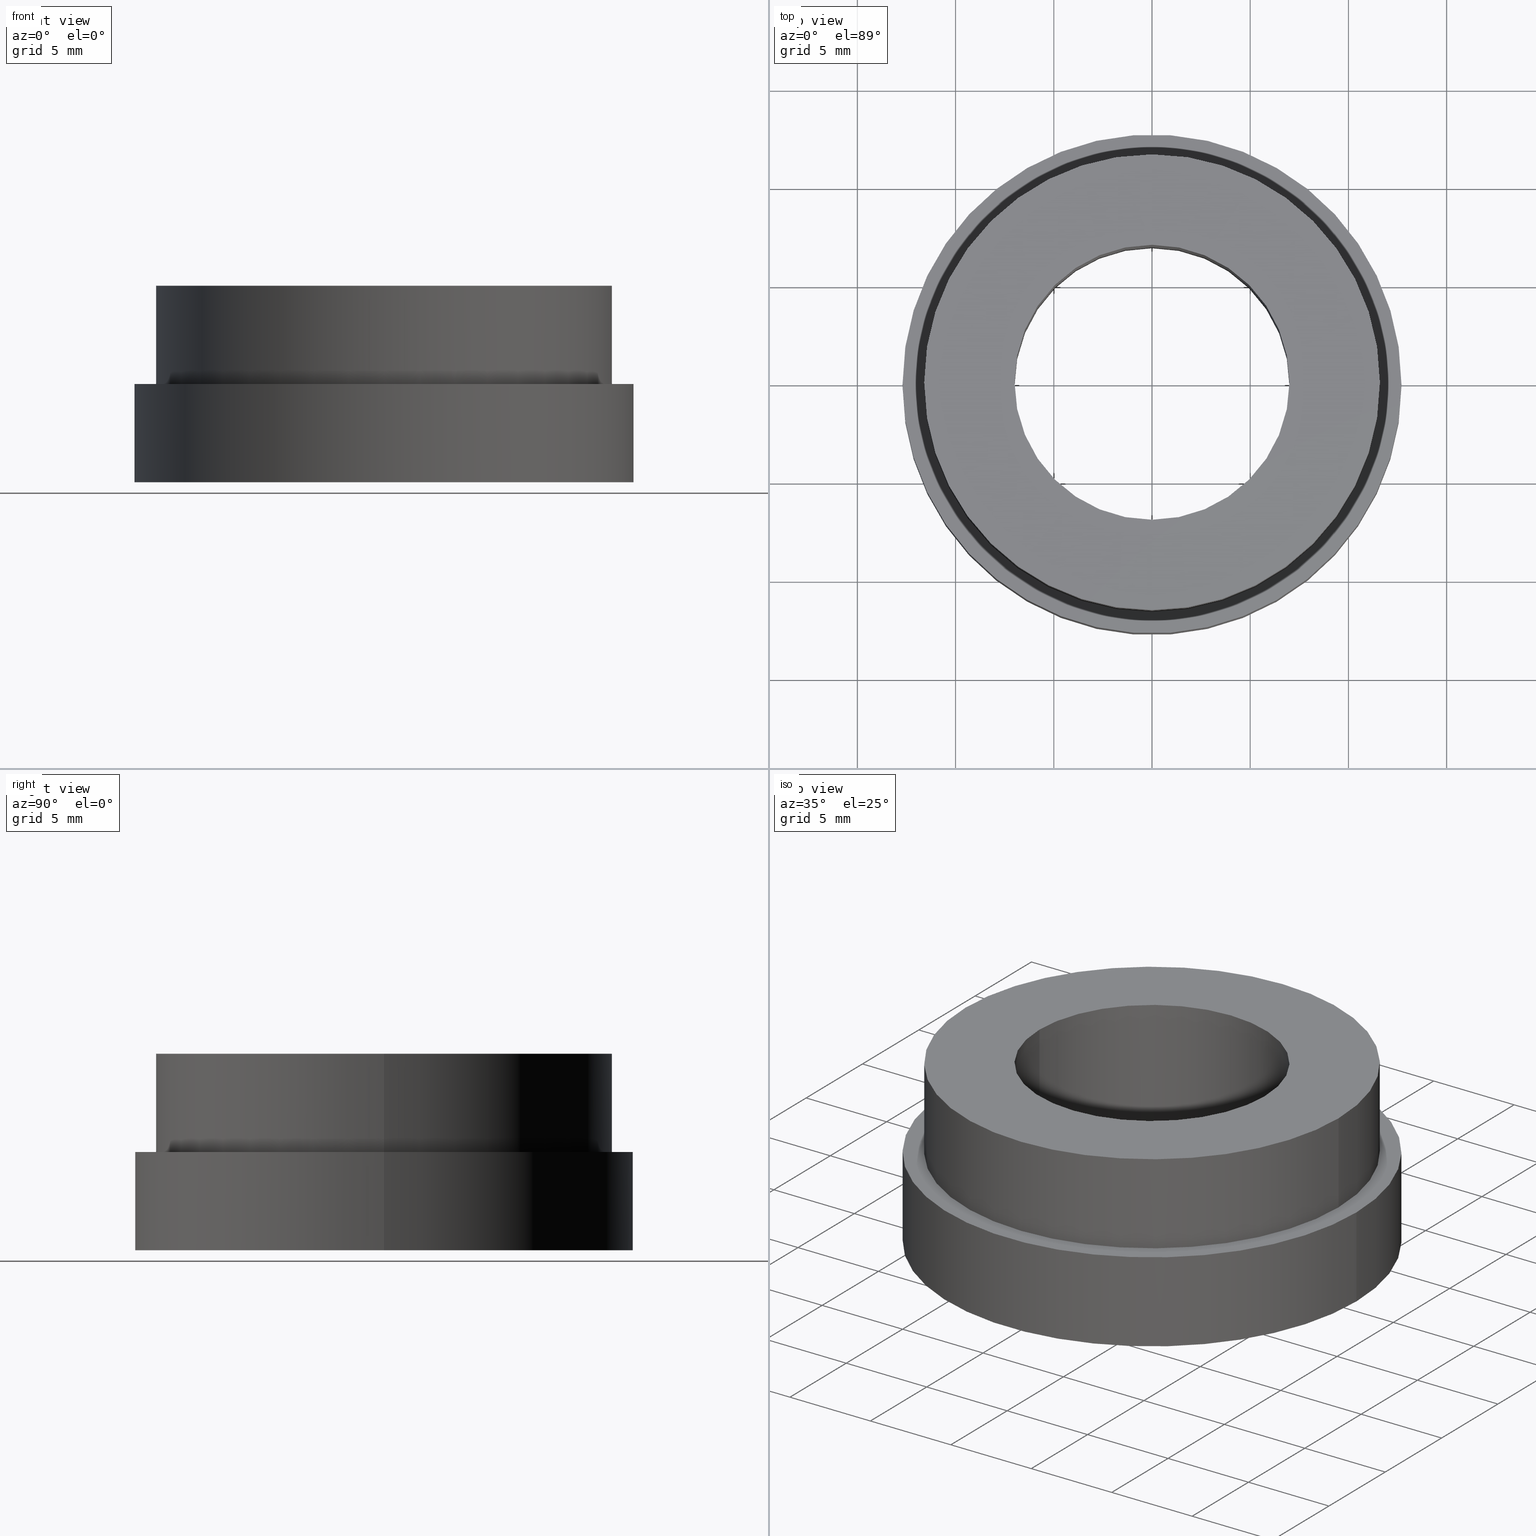
[diagram: canonical four-view strip — front | top / right | iso, engineering-drawing reading convention]
A machine part, canonical four-view strip (front | top / right | iso — engineering-drawing reading convention). The complete STEP part file that produces these views, byte-faithful:
ISO-10303-21;
HEADER;
FILE_DESCRIPTION (( 'STEP AP214' ),
    '1' );
FILE_NAME ('504086.STEP',
    '2019-09-17T01:17:08',
    ( 'user' ),
    ( '΢���й�' ),
    'SwSTEP 2.0',
    'SolidWorks 2016',
    '' );
FILE_SCHEMA (( 'AUTOMOTIVE_DESIGN' ));
ENDSEC;

DATA;
#1 = UNCERTAINTY_MEASURE_WITH_UNIT (LENGTH_MEASURE( 1.000000000000000100E-005 ), #219, 'distance_accuracy_value', 'NONE');
#2 = MECHANICAL_DESIGN_GEOMETRIC_PRESENTATION_REPRESENTATION (  '', ( #247 ), #92 ) ;
#3 = FILL_AREA_STYLE ('',( #276 ) ) ;
#4 = EDGE_CURVE ( 'NONE', #30, #248, #162, .T. ) ;
#5 =( GEOMETRIC_REPRESENTATION_CONTEXT ( 3 ) GLOBAL_UNCERTAINTY_ASSIGNED_CONTEXT ( ( #292 ) ) GLOBAL_UNIT_ASSIGNED_CONTEXT ( ( #165, #319, #135 ) ) REPRESENTATION_CONTEXT ( 'NONE', 'WORKASPACE' ) );
#6 = ADVANCED_FACE ( 'NONE', ( #79 ), #149, .T. ) ;
#7 = SURFACE_STYLE_FILL_AREA ( #242 ) ;
#8 = VERTEX_POINT ( 'NONE', #343 ) ;
#9 = ORIENTED_EDGE ( 'NONE', *, *, #202, .F. ) ;
#10 = DIRECTION ( 'NONE',  ( -0.0000000000000000000, -0.0000000000000000000, -1.000000000000000000 ) ) ;
#11 = FACE_OUTER_BOUND ( 'NONE', #83, .T. ) ;
#12 = ORIENTED_EDGE ( 'NONE', *, *, #294, .F. ) ;
#13 = CARTESIAN_POINT ( 'NONE',  ( 0.0000000000000000000, 0.0000000000000000000, 0.0000000000000000000 ) ) ;
#14 = FILL_AREA_STYLE ('',( #337 ) ) ;
#15 = DIRECTION ( 'NONE',  ( -0.0000000000000000000, -0.0000000000000000000, -1.000000000000000000 ) ) ;
#16 = PRODUCT_DEFINITION_SHAPE ( 'NONE', 'NONE',  #178 ) ;
#17 = EDGE_CURVE ( 'NONE', #237, #307, #220, .T. ) ;
#18 =( NAMED_UNIT ( * ) PLANE_ANGLE_UNIT ( ) SI_UNIT ( $, .RADIAN. ) );
#19 = DIRECTION ( 'NONE',  ( -1.000000000000000000, 0.0000000000000000000, 0.0000000000000000000 ) ) ;
#20 = DIRECTION ( 'NONE',  ( -1.000000000000000000, 0.0000000000000000000, 0.0000000000000000000 ) ) ;
#21 = PRESENTATION_STYLE_ASSIGNMENT (( #213 ) ) ;
#22 = FACE_OUTER_BOUND ( 'NONE', #106, .T. ) ;
#23 = ORIENTED_EDGE ( 'NONE', *, *, #294, .T. ) ;
#24 =( LENGTH_UNIT ( ) NAMED_UNIT ( * ) SI_UNIT ( .MILLI., .METRE. ) );
#25 = EDGE_CURVE ( 'NONE', #312, #139, #39, .T. ) ;
#26 = DIRECTION ( 'NONE',  ( -0.0000000000000000000, -0.0000000000000000000, -1.000000000000000000 ) ) ;
#27 = CARTESIAN_POINT ( 'NONE',  ( 0.0000000000000000000, 0.0000000000000000000, -19.14057971014493000 ) ) ;
#28 = AXIS2_PLACEMENT_3D ( 'NONE', #27, #167, #320 ) ;
#29 = DIRECTION ( 'NONE',  ( -0.0000000000000000000, -0.0000000000000000000, -1.000000000000000000 ) ) ;
#30 = VERTEX_POINT ( 'NONE', #259 ) ;
#31 =( NAMED_UNIT ( * ) PLANE_ANGLE_UNIT ( ) SI_UNIT ( $, .RADIAN. ) );
#32 = CYLINDRICAL_SURFACE ( 'NONE', #215, 11.60000000000000100 ) ;
#33 =( LENGTH_UNIT ( ) NAMED_UNIT ( * ) SI_UNIT ( .MILLI., .METRE. ) );
#34 = MANIFOLD_SOLID_BREP ( '��ת1', #156 ) ;
#35 = CARTESIAN_POINT ( 'NONE',  ( -7.000000000000001800, 0.0000000000000000000, 0.0000000000000000000 ) ) ;
#36 = ORIENTED_EDGE ( 'NONE', *, *, #186, .T. ) ;
#37 = AXIS2_PLACEMENT_3D ( 'NONE', #342, #181, #99 ) ;
#38 = AXIS2_PLACEMENT_3D ( 'NONE', #315, #159, #20 ) ;
#39 = CIRCLE ( 'NONE', #54, 11.60000000000000100 ) ;
#40 = ORIENTED_EDGE ( 'NONE', *, *, #347, .F. ) ;
#41 = DIRECTION ( 'NONE',  ( -0.0000000000000000000, -0.0000000000000000000, -1.000000000000000000 ) ) ;
#42 = ORIENTED_EDGE ( 'NONE', *, *, #152, .F. ) ;
#43 = STYLED_ITEM ( 'NONE', ( #21 ), #229 ) ;
#44 = DIRECTION ( 'NONE',  ( -1.000000000000000000, 0.0000000000000000000, 0.0000000000000000000 ) ) ;
#45 = SURFACE_STYLE_FILL_AREA ( #14 ) ;
#46 = ORIENTED_EDGE ( 'NONE', *, *, #78, .T. ) ;
#47 = LINE ( 'NONE', #84, #170 ) ;
#48 = SURFACE_SIDE_STYLE ('',( #7 ) ) ;
#49 = AXIS2_PLACEMENT_3D ( 'NONE', #273, #308, #278 ) ;
#50 = FACE_OUTER_BOUND ( 'NONE', #344, .T. ) ;
#51 = CARTESIAN_POINT ( 'NONE',  ( 7.000000000000002700, 8.572527594031475200E-016, -19.14057971014493000 ) ) ;
#52 = EDGE_LOOP ( 'NONE', ( #231, #244, #129, #180 ) ) ;
#53 = DIRECTION ( 'NONE',  ( 1.000000000000000000, 0.0000000000000000000, -0.0000000000000000000 ) ) ;
#54 = AXIS2_PLACEMENT_3D ( 'NONE', #161, #130, #288 ) ;
#55 = SURFACE_STYLE_USAGE ( .BOTH. , #245 ) ;
#56 = EDGE_CURVE ( 'NONE', #197, #176, #125, .T. ) ;
#57 = SURFACE_SIDE_STYLE ('',( #283 ) ) ;
#58 = ORIENTED_EDGE ( 'NONE', *, *, #78, .F. ) ;
#59 = CARTESIAN_POINT ( 'NONE',  ( 0.0000000000000000000, 0.0000000000000000000, -19.14057971014493000 ) ) ;
#60 = VECTOR ( 'NONE', #111, 1000.000000000000000 ) ;
#61 = DIRECTION ( 'NONE',  ( -0.0000000000000000000, -0.0000000000000000000, -1.000000000000000000 ) ) ;
#62 = VECTOR ( 'NONE', #136, 1000.000000000000000 ) ;
#63 = ORIENTED_EDGE ( 'NONE', *, *, #56, .F. ) ;
#64 = PRESENTATION_LAYER_ASSIGNMENT (  '', '', ( #43 ) ) ;
#65 = CARTESIAN_POINT ( 'NONE',  ( 0.0000000000000000000, 0.0000000000000000000, 0.0000000000000000000 ) ) ;
#66 = ORIENTED_EDGE ( 'NONE', *, *, #202, .T. ) ;
#67 = UNCERTAINTY_MEASURE_WITH_UNIT (LENGTH_MEASURE( 1.000000000000000100E-005 ), #33, 'distance_accuracy_value', 'NONE');
#68 = CYLINDRICAL_SURFACE ( 'NONE', #109, 7.000000000000002700 ) ;
#69 = PRESENTATION_LAYER_ASSIGNMENT (  '', '', ( #118 ) ) ;
#70 = PLANE ( 'NONE',  #348 ) ;
#71 = SURFACE_STYLE_USAGE ( .BOTH. , #257 ) ;
#72 = VECTOR ( 'NONE', #198, 1000.000000000000000 ) ;
#73 = CARTESIAN_POINT ( 'NONE',  ( 0.0000000000000000000, 0.0000000000000000000, -10.00000000000000000 ) ) ;
#74 = FACE_OUTER_BOUND ( 'NONE', #52, .T. ) ;
#75 = EDGE_LOOP ( 'NONE', ( #221, #36, #112, #85 ) ) ;
#76 =( GEOMETRIC_REPRESENTATION_CONTEXT ( 3 ) GLOBAL_UNCERTAINTY_ASSIGNED_CONTEXT ( ( #133 ) ) GLOBAL_UNIT_ASSIGNED_CONTEXT ( ( #116, #272, #87 ) ) REPRESENTATION_CONTEXT ( 'NONE', 'WORKASPACE' ) );
#77 = APPLICATION_CONTEXT ( 'automotive_design' ) ;
#78 = EDGE_CURVE ( 'NONE', #176, #197, #290, .T. ) ;
#79 = FACE_OUTER_BOUND ( 'NONE', #329, .T. ) ;
#80 = PLANE ( 'NONE',  #340 ) ;
#81 = MECHANICAL_DESIGN_GEOMETRIC_PRESENTATION_REPRESENTATION (  '', ( #43 ), #101 ) ;
#82 = CARTESIAN_POINT ( 'NONE',  ( 12.70000000000000300, 1.555301434917138800E-015, -10.00000000000000000 ) ) ;
#83 = EDGE_LOOP ( 'NONE', ( #317, #42 ) ) ;
#84 = CARTESIAN_POINT ( 'NONE',  ( -7.000000000000002700, 0.0000000000000000000, -19.14057971014493000 ) ) ;
#85 = ORIENTED_EDGE ( 'NONE', *, *, #302, .F. ) ;
#86 = DIRECTION ( 'NONE',  ( -1.000000000000000000, 0.0000000000000000000, 0.0000000000000000000 ) ) ;
#87 =( NAMED_UNIT ( * ) SI_UNIT ( $, .STERADIAN. ) SOLID_ANGLE_UNIT ( ) );
#88 = AXIS2_PLACEMENT_3D ( 'NONE', #73, #236, #44 ) ;
#89 = CARTESIAN_POINT ( 'NONE',  ( 11.60000000000000100, 1.420590287010929700E-015, -19.14057971014493000 ) ) ;
#90 = FACE_BOUND ( 'NONE', #291, .T. ) ;
#91 = ORIENTED_EDGE ( 'NONE', *, *, #17, .F. ) ;
#92 =( GEOMETRIC_REPRESENTATION_CONTEXT ( 3 ) GLOBAL_UNCERTAINTY_ASSIGNED_CONTEXT ( ( #195 ) ) GLOBAL_UNIT_ASSIGNED_CONTEXT ( ( #158, #314, #128 ) ) REPRESENTATION_CONTEXT ( 'NONE', 'WORKASPACE' ) );
#93 = ADVANCED_FACE ( 'NONE', ( #74 ), #163, .T. ) ;
#94 = ORIENTED_EDGE ( 'NONE', *, *, #4, .T. ) ;
#95 = COLOUR_RGB ( '',1.000000000000000000, 1.000000000000000000, 1.000000000000000000 ) ;
#96 = FACE_BOUND ( 'NONE', #151, .T. ) ;
#97 = EDGE_LOOP ( 'NONE', ( #240, #203 ) ) ;
#98 = EDGE_CURVE ( 'NONE', #285, #262, #230, .T. ) ;
#99 = DIRECTION ( 'NONE',  ( -1.000000000000000000, 0.0000000000000000000, 0.0000000000000000000 ) ) ;
#100 = CARTESIAN_POINT ( 'NONE',  ( 0.0000000000000000000, 0.0000000000000000000, -10.00000000000000000 ) ) ;
#101 =( GEOMETRIC_REPRESENTATION_CONTEXT ( 3 ) GLOBAL_UNCERTAINTY_ASSIGNED_CONTEXT ( ( #173 ) ) GLOBAL_UNIT_ASSIGNED_CONTEXT ( ( #24, #189, #346 ) ) REPRESENTATION_CONTEXT ( 'NONE', 'WORKASPACE' ) );
#102 = FILL_AREA_STYLE ('',( #104 ) ) ;
#103 = ORIENTED_EDGE ( 'NONE', *, *, #275, .F. ) ;
#104 = FILL_AREA_STYLE_COLOUR ( '', #339 ) ;
#105 = VECTOR ( 'NONE', #26, 1000.000000000000000 ) ;
#106 = EDGE_LOOP ( 'NONE', ( #333, #103 ) ) ;
#107 = APPLICATION_CONTEXT ( 'automotive_design' ) ;
#108 = APPLICATION_PROTOCOL_DEFINITION ( 'draft international standard', 'automotive_design', 1998, #77 ) ;
#109 = AXIS2_PLACEMENT_3D ( 'NONE', #59, #15, #223 ) ;
#110 = CARTESIAN_POINT ( 'NONE',  ( 0.0000000000000000000, 0.0000000000000000000, 0.0000000000000000000 ) ) ;
#111 = DIRECTION ( 'NONE',  ( -0.0000000000000000000, -0.0000000000000000000, -1.000000000000000000 ) ) ;
#112 = ORIENTED_EDGE ( 'NONE', *, *, #4, .F. ) ;
#113 = CARTESIAN_POINT ( 'NONE',  ( -7.000000000000002700, 0.0000000000000000000, -9.999999999999998200 ) ) ;
#114 = FILL_AREA_STYLE ('',( #269 ) ) ;
#115 = CARTESIAN_POINT ( 'NONE',  ( 0.0000000000000000000, 0.0000000000000000000, -9.999999999999998200 ) ) ;
#116 =( LENGTH_UNIT ( ) NAMED_UNIT ( * ) SI_UNIT ( .MILLI., .METRE. ) );
#117 = ORIENTED_EDGE ( 'NONE', *, *, #157, .T. ) ;
#118 = STYLED_ITEM ( 'NONE', ( #281 ), #34 ) ;
#119 = DIRECTION ( 'NONE',  ( -1.000000000000000000, 0.0000000000000000000, 0.0000000000000000000 ) ) ;
#120 = DIRECTION ( 'NONE',  ( -1.000000000000000000, 0.0000000000000000000, 0.0000000000000000000 ) ) ;
#121 = ORIENTED_EDGE ( 'NONE', *, *, #275, .T. ) ;
#122 = ADVANCED_FACE ( 'NONE', ( #22, #96 ), #70, .F. ) ;
#123 = FACE_BOUND ( 'NONE', #325, .T. ) ;
#124 = AXIS2_PLACEMENT_3D ( 'NONE', #234, #41, #207 ) ;
#125 = CIRCLE ( 'NONE', #205, 7.000000000000001800 ) ;
#126 = ORIENTED_EDGE ( 'NONE', *, *, #347, .T. ) ;
#127 = PRESENTATION_LAYER_ASSIGNMENT (  '', '', ( #334 ) ) ;
#128 =( NAMED_UNIT ( * ) SI_UNIT ( $, .STERADIAN. ) SOLID_ANGLE_UNIT ( ) );
#129 = ORIENTED_EDGE ( 'NONE', *, *, #302, .T. ) ;
#130 = DIRECTION ( 'NONE',  ( -0.0000000000000000000, -0.0000000000000000000, -1.000000000000000000 ) ) ;
#131 = DIRECTION ( 'NONE',  ( -0.0000000000000000000, -0.0000000000000000000, -1.000000000000000000 ) ) ;
#132 = ORIENTED_EDGE ( 'NONE', *, *, #98, .T. ) ;
#133 = UNCERTAINTY_MEASURE_WITH_UNIT (LENGTH_MEASURE( 1.000000000000000100E-005 ), #116, 'distance_accuracy_value', 'NONE');
#134 = DIRECTION ( 'NONE',  ( 1.000000000000000000, 0.0000000000000000000, 0.0000000000000000000 ) ) ;
#135 =( NAMED_UNIT ( * ) SI_UNIT ( $, .STERADIAN. ) SOLID_ANGLE_UNIT ( ) );
#136 = DIRECTION ( 'NONE',  ( -0.0000000000000000000, -0.0000000000000000000, -1.000000000000000000 ) ) ;
#137 = CYLINDRICAL_SURFACE ( 'NONE', #309, 7.000000000000002700 ) ;
#138 = DIRECTION ( 'NONE',  ( -0.0000000000000000000, -0.0000000000000000000, -1.000000000000000000 ) ) ;
#139 = VERTEX_POINT ( 'NONE', #232 ) ;
#140 = DIRECTION ( 'NONE',  ( -0.0000000000000000000, -0.0000000000000000000, -1.000000000000000000 ) ) ;
#141 = FACE_OUTER_BOUND ( 'NONE', #75, .T. ) ;
#142 = SURFACE_SIDE_STYLE ('',( #287 ) ) ;
#143 = DIRECTION ( 'NONE',  ( -0.0000000000000000000, 0.0000000000000000000, -1.000000000000000000 ) ) ;
#144 = ORIENTED_EDGE ( 'NONE', *, *, #336, .F. ) ;
#145 = MECHANICAL_DESIGN_GEOMETRIC_PRESENTATION_REPRESENTATION (  '', ( #334 ), #166 ) ;
#146 = DIRECTION ( 'NONE',  ( -0.0000000000000000000, -0.0000000000000000000, -1.000000000000000000 ) ) ;
#147 = ADVANCED_FACE ( 'NONE', ( #11, #90 ), #260, .F. ) ;
#148 = PRESENTATION_STYLE_ASSIGNMENT (( #304 ) ) ;
#149 = CYLINDRICAL_SURFACE ( 'NONE', #350, 12.69999999999999900 ) ;
#150 = EDGE_CURVE ( 'NONE', #307, #237, #226, .T. ) ;
#151 = EDGE_LOOP ( 'NONE', ( #94, #271 ) ) ;
#152 = EDGE_CURVE ( 'NONE', #139, #312, #155, .T. ) ;
#153 = AXIS2_PLACEMENT_3D ( 'NONE', #199, #306, #119 ) ;
#154 = DIRECTION ( 'NONE',  ( -1.000000000000000000, 0.0000000000000000000, 0.0000000000000000000 ) ) ;
#155 = CIRCLE ( 'NONE', #295, 11.60000000000000100 ) ;
#156 = CLOSED_SHELL ( 'NONE', ( #201, #6, #228, #147, #93, #122, #330, #310, #252 ) ) ;
#157 = EDGE_CURVE ( 'NONE', #354, #8, #296, .T. ) ;
#158 =( LENGTH_UNIT ( ) NAMED_UNIT ( * ) SI_UNIT ( .MILLI., .METRE. ) );
#159 = DIRECTION ( 'NONE',  ( -0.0000000000000000000, -0.0000000000000000000, -1.000000000000000000 ) ) ;
#160 = AXIS2_PLACEMENT_3D ( 'NONE', #110, #318, #134 ) ;
#161 = CARTESIAN_POINT ( 'NONE',  ( 0.0000000000000000000, 0.0000000000000000000, 0.0000000000000000000 ) ) ;
#162 = CIRCLE ( 'NONE', #38, 11.60000000000000100 ) ;
#163 = CYLINDRICAL_SURFACE ( 'NONE', #37, 11.60000000000000100 ) ;
#164 = ORIENTED_EDGE ( 'NONE', *, *, #328, .F. ) ;
#165 =( LENGTH_UNIT ( ) NAMED_UNIT ( * ) SI_UNIT ( .MILLI., .METRE. ) );
#166 =( GEOMETRIC_REPRESENTATION_CONTEXT ( 3 ) GLOBAL_UNCERTAINTY_ASSIGNED_CONTEXT ( ( #67 ) ) GLOBAL_UNIT_ASSIGNED_CONTEXT ( ( #33, #194, #353 ) ) REPRESENTATION_CONTEXT ( 'NONE', 'WORKASPACE' ) );
#167 = DIRECTION ( 'NONE',  ( -0.0000000000000000000, -0.0000000000000000000, -1.000000000000000000 ) ) ;
#168 = DIRECTION ( 'NONE',  ( -0.0000000000000000000, -0.0000000000000000000, -1.000000000000000000 ) ) ;
#169 = CARTESIAN_POINT ( 'NONE',  ( 0.0000000000000000000, 0.0000000000000000000, -19.14057971014493000 ) ) ;
#170 = VECTOR ( 'NONE', #168, 1000.000000000000000 ) ;
#171 = DIRECTION ( 'NONE',  ( -1.000000000000000000, 0.0000000000000000000, 0.0000000000000000000 ) ) ;
#172 = FACE_OUTER_BOUND ( 'NONE', #187, .T. ) ;
#173 = UNCERTAINTY_MEASURE_WITH_UNIT (LENGTH_MEASURE( 1.000000000000000100E-005 ), #24, 'distance_accuracy_value', 'NONE');
#174 = EDGE_CURVE ( 'NONE', #248, #30, #305, .T. ) ;
#175 = AXIS2_PLACEMENT_3D ( 'NONE', #238, #185, #341 ) ;
#176 = VERTEX_POINT ( 'NONE', #250 ) ;
#177 = CARTESIAN_POINT ( 'NONE',  ( 11.60000000000000100, 0.0000000000000000000, -5.000000000000000000 ) ) ;
#178 = PRODUCT_DEFINITION ( 'δ֪', '', #192, #216 ) ;
#179 = COLOUR_RGB ( '',1.000000000000000000, 1.000000000000000000, 1.000000000000000000 ) ;
#180 = ORIENTED_EDGE ( 'NONE', *, *, #174, .F. ) ;
#181 = DIRECTION ( 'NONE',  ( -0.0000000000000000000, -0.0000000000000000000, -1.000000000000000000 ) ) ;
#182 = PRESENTATION_LAYER_ASSIGNMENT (  '', '', ( #200 ) ) ;
#183 = SURFACE_SIDE_STYLE ('',( #45 ) ) ;
#184 =( NAMED_UNIT ( * ) SI_UNIT ( $, .STERADIAN. ) SOLID_ANGLE_UNIT ( ) );
#185 = DIRECTION ( 'NONE',  ( -0.0000000000000000000, 0.0000000000000000000, -1.000000000000000000 ) ) ;
#186 = EDGE_CURVE ( 'NONE', #139, #248, #214, .T. ) ;
#187 = EDGE_LOOP ( 'NONE', ( #40, #63, #23, #66 ) ) ;
#188 = AXIS2_PLACEMENT_3D ( 'NONE', #249, #61, #224 ) ;
#189 =( NAMED_UNIT ( * ) PLANE_ANGLE_UNIT ( ) SI_UNIT ( $, .RADIAN. ) );
#190 = FILL_AREA_STYLE_COLOUR ( '', #179 ) ;
#191 = DIRECTION ( 'NONE',  ( -1.000000000000000000, 0.0000000000000000000, 0.0000000000000000000 ) ) ;
#192 = PRODUCT_DEFINITION_FORMATION_WITH_SPECIFIED_SOURCE ( '�κ�', '', #289, .NOT_KNOWN. ) ;
#193 =( NAMED_UNIT ( * ) SI_UNIT ( $, .STERADIAN. ) SOLID_ANGLE_UNIT ( ) );
#194 =( NAMED_UNIT ( * ) PLANE_ANGLE_UNIT ( ) SI_UNIT ( $, .RADIAN. ) );
#195 = UNCERTAINTY_MEASURE_WITH_UNIT (LENGTH_MEASURE( 1.000000000000000100E-005 ), #158, 'distance_accuracy_value', 'NONE');
#196 = FILL_AREA_STYLE_COLOUR ( '', #274 ) ;
#197 = VERTEX_POINT ( 'NONE', #35 ) ;
#198 = DIRECTION ( 'NONE',  ( -0.0000000000000000000, -0.0000000000000000000, -1.000000000000000000 ) ) ;
#199 = CARTESIAN_POINT ( 'NONE',  ( 0.0000000000000000000, 0.0000000000000000000, -5.000000000000000900 ) ) ;
#200 = STYLED_ITEM ( 'NONE', ( #311 ), #252 ) ;
#201 = ADVANCED_FACE ( 'NONE', ( #284 ), #68, .F. ) ;
#202 = EDGE_CURVE ( 'NONE', #262, #285, #204, .T. ) ;
#203 = ORIENTED_EDGE ( 'NONE', *, *, #150, .T. ) ;
#204 = CIRCLE ( 'NONE', #241, 7.000000000000002700 ) ;
#205 = AXIS2_PLACEMENT_3D ( 'NONE', #13, #206, #154 ) ;
#206 = DIRECTION ( 'NONE',  ( -0.0000000000000000000, -0.0000000000000000000, -1.000000000000000000 ) ) ;
#207 = DIRECTION ( 'NONE',  ( -1.000000000000000000, 0.0000000000000000000, 0.0000000000000000000 ) ) ;
#208 = PRODUCT_RELATED_PRODUCT_CATEGORY ( 'part', '', ( #289 ) ) ;
#209 = CARTESIAN_POINT ( 'NONE',  ( 0.0000000000000000000, 0.0000000000000000000, -19.14057971014493000 ) ) ;
#210 = ORIENTED_EDGE ( 'NONE', *, *, #328, .T. ) ;
#211 = STYLED_ITEM ( 'NONE', ( #148 ), #201 ) ;
#212 = PRESENTATION_STYLE_ASSIGNMENT (( #222 ) ) ;
#213 = SURFACE_STYLE_USAGE ( .BOTH. , #48 ) ;
#214 = LINE ( 'NONE', #89, #72 ) ;
#215 = AXIS2_PLACEMENT_3D ( 'NONE', #303, #140, #171 ) ;
#216 = PRODUCT_DEFINITION_CONTEXT ( 'detailed design', #107, 'design' ) ;
#217 = CARTESIAN_POINT ( 'NONE',  ( 12.69999999999999900, 1.555301434917138400E-015, -19.14057971014493000 ) ) ;
#218 = CARTESIAN_POINT ( 'NONE',  ( 0.0000000000000000000, 0.0000000000000000000, -5.000000000000000900 ) ) ;
#219 =( LENGTH_UNIT ( ) NAMED_UNIT ( * ) SI_UNIT ( .MILLI., .METRE. ) );
#220 = CIRCLE ( 'NONE', #88, 12.70000000000000100 ) ;
#221 = ORIENTED_EDGE ( 'NONE', *, *, #25, .T. ) ;
#222 = SURFACE_STYLE_USAGE ( .BOTH. , #57 ) ;
#223 = DIRECTION ( 'NONE',  ( -1.000000000000000000, 0.0000000000000000000, 0.0000000000000000000 ) ) ;
#224 = DIRECTION ( 'NONE',  ( -1.000000000000000000, 0.0000000000000000000, 0.0000000000000000000 ) ) ;
#225 = PRESENTATION_LAYER_ASSIGNMENT (  '', '', ( #211 ) ) ;
#226 = CIRCLE ( 'NONE', #327, 12.70000000000000100 ) ;
#227 = ORIENTED_EDGE ( 'NONE', *, *, #98, .F. ) ;
#228 = ADVANCED_FACE ( 'NONE', ( #141 ), #32, .T. ) ;
#229 = ADVANCED_BREP_SHAPE_REPRESENTATION ( '504086', ( #34, #160 ), #5 ) ;
#230 = CIRCLE ( 'NONE', #49, 7.000000000000002700 ) ;
#231 = ORIENTED_EDGE ( 'NONE', *, *, #186, .F. ) ;
#232 = CARTESIAN_POINT ( 'NONE',  ( 11.60000000000000100, 1.420590287010929700E-015, 0.0000000000000000000 ) ) ;
#233 = MECHANICAL_DESIGN_GEOMETRIC_PRESENTATION_REPRESENTATION (  '', ( #200 ), #251 ) ;
#234 = CARTESIAN_POINT ( 'NONE',  ( 0.0000000000000000000, 0.0000000000000000000, 0.0000000000000000000 ) ) ;
#235 =( LENGTH_UNIT ( ) NAMED_UNIT ( * ) SI_UNIT ( .MILLI., .METRE. ) );
#236 = DIRECTION ( 'NONE',  ( -0.0000000000000000000, -0.0000000000000000000, -1.000000000000000000 ) ) ;
#237 = VERTEX_POINT ( 'NONE', #301 ) ;
#238 = CARTESIAN_POINT ( 'NONE',  ( 7.000000000000001800, 0.0000000000000000000, 0.0000000000000000000 ) ) ;
#239 = SURFACE_STYLE_FILL_AREA ( #114 ) ;
#240 = ORIENTED_EDGE ( 'NONE', *, *, #17, .T. ) ;
#241 = AXIS2_PLACEMENT_3D ( 'NONE', #115, #270, #86 ) ;
#242 = FILL_AREA_STYLE ('',( #190 ) ) ;
#243 = DIRECTION ( 'NONE',  ( 0.0000000000000000000, 0.0000000000000000000, 1.000000000000000000 ) ) ;
#244 = ORIENTED_EDGE ( 'NONE', *, *, #152, .T. ) ;
#245 = SURFACE_SIDE_STYLE ('',( #239 ) ) ;
#246 = FILL_AREA_STYLE ('',( #196 ) ) ;
#247 = STYLED_ITEM ( 'NONE', ( #253 ), #93 ) ;
#248 = VERTEX_POINT ( 'NONE', #323 ) ;
#249 = CARTESIAN_POINT ( 'NONE',  ( 0.0000000000000000000, 0.0000000000000000000, -5.000000000000000900 ) ) ;
#250 = CARTESIAN_POINT ( 'NONE',  ( 7.000000000000001800, 8.572527594031474200E-016, 0.0000000000000000000 ) ) ;
#251 =( GEOMETRIC_REPRESENTATION_CONTEXT ( 3 ) GLOBAL_UNCERTAINTY_ASSIGNED_CONTEXT ( ( #1 ) ) GLOBAL_UNIT_ASSIGNED_CONTEXT ( ( #219, #31, #193 ) ) REPRESENTATION_CONTEXT ( 'NONE', 'WORKASPACE' ) );
#252 = ADVANCED_FACE ( 'NONE', ( #172 ), #137, .F. ) ;
#253 = PRESENTATION_STYLE_ASSIGNMENT (( #338 ) ) ;
#254 = ORIENTED_EDGE ( 'NONE', *, *, #56, .T. ) ;
#255 = MECHANICAL_DESIGN_GEOMETRIC_PRESENTATION_REPRESENTATION (  '', ( #211 ), #76 ) ;
#256 = CYLINDRICAL_SURFACE ( 'NONE', #28, 12.69999999999999900 ) ;
#257 = SURFACE_SIDE_STYLE ('',( #352 ) ) ;
#258 = FACE_OUTER_BOUND ( 'NONE', #97, .T. ) ;
#259 = CARTESIAN_POINT ( 'NONE',  ( -11.60000000000000100, 0.0000000000000000000, -5.000000000000000900 ) ) ;
#260 = PLANE ( 'NONE',  #175 ) ;
#261 = PRESENTATION_LAYER_ASSIGNMENT (  '', '', ( #247 ) ) ;
#262 = VERTEX_POINT ( 'NONE', #113 ) ;
#263 = LINE ( 'NONE', #298, #62 ) ;
#264 = APPLICATION_PROTOCOL_DEFINITION ( 'draft international standard', 'automotive_design', 1998, #107 ) ;
#265 = LINE ( 'NONE', #217, #60 ) ;
#266 = CARTESIAN_POINT ( 'NONE',  ( -12.69999999999999900, 0.0000000000000000000, -5.000000000000000900 ) ) ;
#267 = CARTESIAN_POINT ( 'NONE',  ( -11.60000000000000100, 0.0000000000000000000, 0.0000000000000000000 ) ) ;
#268 = CARTESIAN_POINT ( 'NONE',  ( 7.000000000000002700, 8.572527594031475200E-016, -9.999999999999998200 ) ) ;
#269 = FILL_AREA_STYLE_COLOUR ( '', #95 ) ;
#270 = DIRECTION ( 'NONE',  ( -0.0000000000000000000, -0.0000000000000000000, -1.000000000000000000 ) ) ;
#271 = ORIENTED_EDGE ( 'NONE', *, *, #174, .T. ) ;
#272 =( NAMED_UNIT ( * ) PLANE_ANGLE_UNIT ( ) SI_UNIT ( $, .RADIAN. ) );
#273 = CARTESIAN_POINT ( 'NONE',  ( 0.0000000000000000000, 0.0000000000000000000, -9.999999999999998200 ) ) ;
#274 = COLOUR_RGB ( '',1.000000000000000000, 1.000000000000000000, 1.000000000000000000 ) ;
#275 = EDGE_CURVE ( 'NONE', #8, #354, #331, .T. ) ;
#276 = FILL_AREA_STYLE_COLOUR ( '', #280 ) ;
#277 =( GEOMETRIC_REPRESENTATION_CONTEXT ( 3 ) GLOBAL_UNCERTAINTY_ASSIGNED_CONTEXT ( ( #316 ) ) GLOBAL_UNIT_ASSIGNED_CONTEXT ( ( #235, #18, #184 ) ) REPRESENTATION_CONTEXT ( 'NONE', 'WORKASPACE' ) );
#278 = DIRECTION ( 'NONE',  ( -1.000000000000000000, 0.0000000000000000000, 0.0000000000000000000 ) ) ;
#279 = LINE ( 'NONE', #321, #349 ) ;
#280 = COLOUR_RGB ( '',1.000000000000000000, 1.000000000000000000, 1.000000000000000000 ) ;
#281 = PRESENTATION_STYLE_ASSIGNMENT (( #71 ) ) ;
#282 = ORIENTED_EDGE ( 'NONE', *, *, #336, .T. ) ;
#283 = SURFACE_STYLE_FILL_AREA ( #246 ) ;
#284 = FACE_OUTER_BOUND ( 'NONE', #297, .T. ) ;
#285 = VERTEX_POINT ( 'NONE', #268 ) ;
#286 = AXIS2_PLACEMENT_3D ( 'NONE', #218, #29, #191 ) ;
#287 = SURFACE_STYLE_FILL_AREA ( #3 ) ;
#288 = DIRECTION ( 'NONE',  ( -1.000000000000000000, 0.0000000000000000000, 0.0000000000000000000 ) ) ;
#289 = PRODUCT ( '504086', '504086', '', ( #293 ) ) ;
#290 = CIRCLE ( 'NONE', #124, 7.000000000000001800 ) ;
#291 = EDGE_LOOP ( 'NONE', ( #254, #46 ) ) ;
#292 = UNCERTAINTY_MEASURE_WITH_UNIT (LENGTH_MEASURE( 1.000000000000000100E-005 ), #165, 'distance_accuracy_value', 'NONE');
#293 = PRODUCT_CONTEXT ( 'NONE', #77, 'mechanical' ) ;
#294 = EDGE_CURVE ( 'NONE', #197, #262, #47, .T. ) ;
#295 = AXIS2_PLACEMENT_3D ( 'NONE', #65, #146, #120 ) ;
#296 = CIRCLE ( 'NONE', #153, 12.69999999999999900 ) ;
#297 = EDGE_LOOP ( 'NONE', ( #58, #126, #132, #12 ) ) ;
#298 = CARTESIAN_POINT ( 'NONE',  ( -12.69999999999999900, 0.0000000000000000000, -19.14057971014493000 ) ) ;
#299 = DIRECTION ( 'NONE',  ( -0.0000000000000000000, -0.0000000000000000000, -1.000000000000000000 ) ) ;
#300 = ORIENTED_EDGE ( 'NONE', *, *, #150, .F. ) ;
#301 = CARTESIAN_POINT ( 'NONE',  ( -12.70000000000000100, 0.0000000000000000000, -10.00000000000000000 ) ) ;
#302 = EDGE_CURVE ( 'NONE', #312, #30, #279, .T. ) ;
#303 = CARTESIAN_POINT ( 'NONE',  ( 0.0000000000000000000, 0.0000000000000000000, -19.14057971014493000 ) ) ;
#304 = SURFACE_STYLE_USAGE ( .BOTH. , #142 ) ;
#305 = CIRCLE ( 'NONE', #188, 11.60000000000000100 ) ;
#306 = DIRECTION ( 'NONE',  ( -0.0000000000000000000, -0.0000000000000000000, -1.000000000000000000 ) ) ;
#307 = VERTEX_POINT ( 'NONE', #82 ) ;
#308 = DIRECTION ( 'NONE',  ( -0.0000000000000000000, -0.0000000000000000000, -1.000000000000000000 ) ) ;
#309 = AXIS2_PLACEMENT_3D ( 'NONE', #169, #138, #322 ) ;
#310 = ADVANCED_FACE ( 'NONE', ( #123, #258 ), #80, .F. ) ;
#311 = PRESENTATION_STYLE_ASSIGNMENT (( #55 ) ) ;
#312 = VERTEX_POINT ( 'NONE', #267 ) ;
#313 = MECHANICAL_DESIGN_GEOMETRIC_PRESENTATION_REPRESENTATION (  '', ( #118 ), #277 ) ;
#314 =( NAMED_UNIT ( * ) PLANE_ANGLE_UNIT ( ) SI_UNIT ( $, .RADIAN. ) );
#315 = CARTESIAN_POINT ( 'NONE',  ( 0.0000000000000000000, 0.0000000000000000000, -5.000000000000000900 ) ) ;
#316 = UNCERTAINTY_MEASURE_WITH_UNIT (LENGTH_MEASURE( 1.000000000000000100E-005 ), #235, 'distance_accuracy_value', 'NONE');
#317 = ORIENTED_EDGE ( 'NONE', *, *, #25, .F. ) ;
#318 = DIRECTION ( 'NONE',  ( 0.0000000000000000000, 0.0000000000000000000, 1.000000000000000000 ) ) ;
#319 =( NAMED_UNIT ( * ) PLANE_ANGLE_UNIT ( ) SI_UNIT ( $, .RADIAN. ) );
#320 = DIRECTION ( 'NONE',  ( -1.000000000000000000, 0.0000000000000000000, 0.0000000000000000000 ) ) ;
#321 = CARTESIAN_POINT ( 'NONE',  ( -11.60000000000000100, 0.0000000000000000000, -19.14057971014493000 ) ) ;
#322 = DIRECTION ( 'NONE',  ( -1.000000000000000000, 0.0000000000000000000, 0.0000000000000000000 ) ) ;
#323 = CARTESIAN_POINT ( 'NONE',  ( 11.60000000000000100, 1.420590287010929700E-015, -5.000000000000000900 ) ) ;
#324 = COLOUR_RGB ( '',1.000000000000000000, 1.000000000000000000, 1.000000000000000000 ) ;
#325 = EDGE_LOOP ( 'NONE', ( #9, #227 ) ) ;
#326 = DIRECTION ( 'NONE',  ( -1.000000000000000000, 0.0000000000000000000, 0.0000000000000000000 ) ) ;
#327 = AXIS2_PLACEMENT_3D ( 'NONE', #100, #10, #332 ) ;
#328 = EDGE_CURVE ( 'NONE', #8, #307, #265, .T. ) ;
#329 = EDGE_LOOP ( 'NONE', ( #117, #210, #91, #144 ) ) ;
#330 = ADVANCED_FACE ( 'NONE', ( #50 ), #256, .T. ) ;
#331 = CIRCLE ( 'NONE', #286, 12.69999999999999900 ) ;
#332 = DIRECTION ( 'NONE',  ( -1.000000000000000000, 0.0000000000000000000, 0.0000000000000000000 ) ) ;
#333 = ORIENTED_EDGE ( 'NONE', *, *, #157, .F. ) ;
#334 = STYLED_ITEM ( 'NONE', ( #212 ), #228 ) ;
#335 = LINE ( 'NONE', #51, #105 ) ;
#336 = EDGE_CURVE ( 'NONE', #354, #237, #263, .T. ) ;
#337 = FILL_AREA_STYLE_COLOUR ( '', #324 ) ;
#338 = SURFACE_STYLE_USAGE ( .BOTH. , #183 ) ;
#339 = COLOUR_RGB ( '',1.000000000000000000, 1.000000000000000000, 1.000000000000000000 ) ;
#340 = AXIS2_PLACEMENT_3D ( 'NONE', #351, #243, #53 ) ;
#341 = DIRECTION ( 'NONE',  ( -1.000000000000000000, 0.0000000000000000000, 0.0000000000000000000 ) ) ;
#342 = CARTESIAN_POINT ( 'NONE',  ( 0.0000000000000000000, 0.0000000000000000000, -19.14057971014493000 ) ) ;
#343 = CARTESIAN_POINT ( 'NONE',  ( 12.69999999999999900, 1.555301434917138400E-015, -5.000000000000000900 ) ) ;
#344 = EDGE_LOOP ( 'NONE', ( #164, #121, #282, #300 ) ) ;
#345 = SHAPE_DEFINITION_REPRESENTATION ( #16, #229 ) ;
#346 =( NAMED_UNIT ( * ) SI_UNIT ( $, .STERADIAN. ) SOLID_ANGLE_UNIT ( ) );
#347 = EDGE_CURVE ( 'NONE', #176, #285, #335, .T. ) ;
#348 = AXIS2_PLACEMENT_3D ( 'NONE', #177, #143, #326 ) ;
#349 = VECTOR ( 'NONE', #299, 1000.000000000000000 ) ;
#350 = AXIS2_PLACEMENT_3D ( 'NONE', #209, #131, #19 ) ;
#351 = CARTESIAN_POINT ( 'NONE',  ( 12.70000000000000100, 0.0000000000000000000, -9.999999999999998200 ) ) ;
#352 = SURFACE_STYLE_FILL_AREA ( #102 ) ;
#353 =( NAMED_UNIT ( * ) SI_UNIT ( $, .STERADIAN. ) SOLID_ANGLE_UNIT ( ) );
#354 = VERTEX_POINT ( 'NONE', #266 ) ;
ENDSEC;
END-ISO-10303-21;
